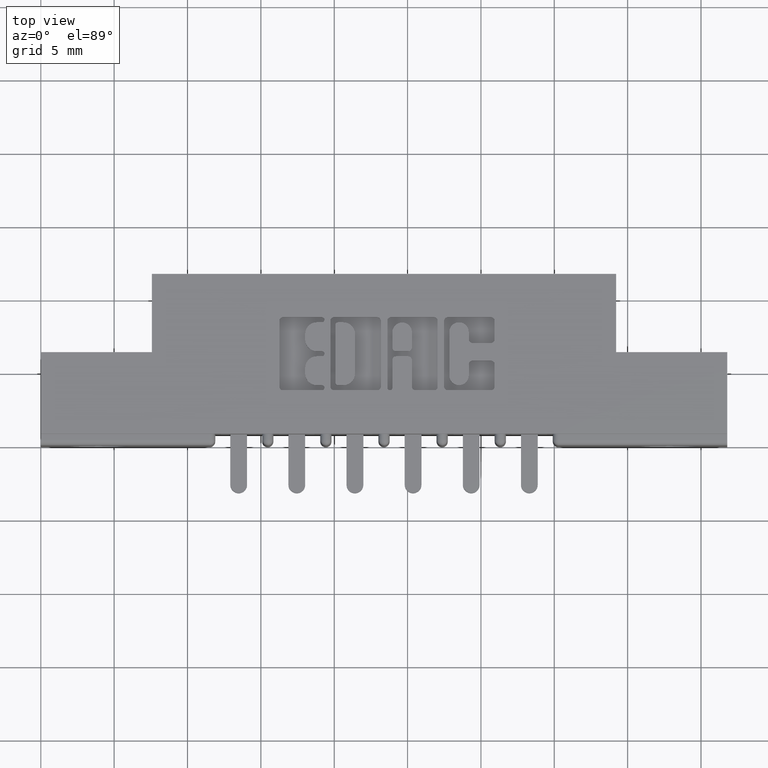
[diagram: clean part render]
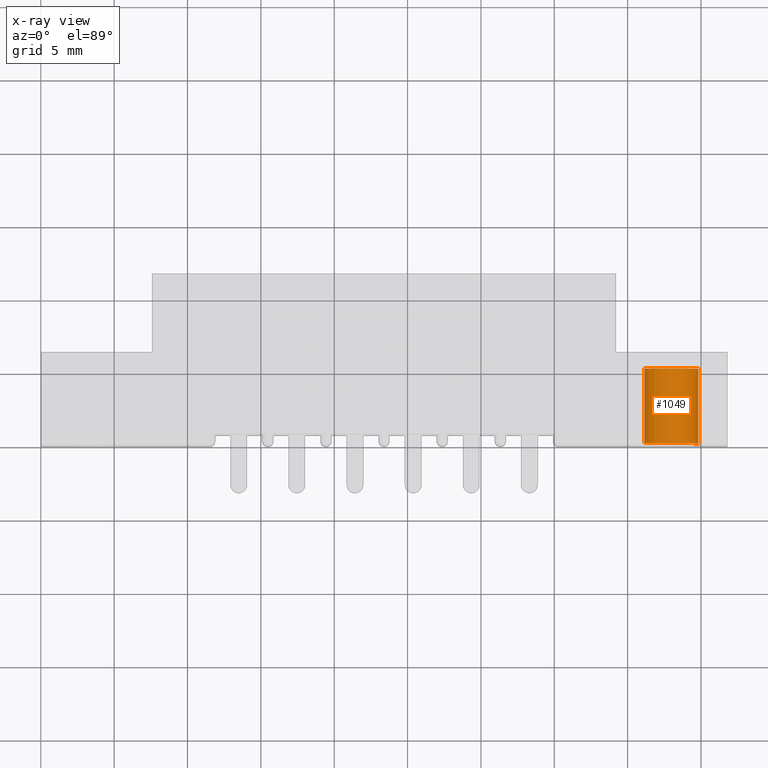
[diagram: x-ray — body ghosted, one internal face saturated and labeled with its STEP entity id]
A machine part, top view, then the same camera in x-ray: the body is ghosted and one INTERNAL B-rep face — a face not visible from any outside direction — is saturated and labeled: STEP entity #1049.
In plain terms, the highlighted cylindrical surface (edge-blend (fillet) strip) has radius 1.9685 mm, axis along (-0, 1, -0).
Its self-contained STEP definition (entity closure, byte-faithful):
#96 = ORIENTED_EDGE ( 'NONE', *, *, #10411, .F. ) ;
#262 = AXIS2_PLACEMENT_3D ( 'NONE', #2928, #3858, #6450 ) ;
#527 = VERTEX_POINT ( 'NONE', #9042 ) ;
#762 = DIRECTION ( 'NONE',  ( 0.0000000000000000000, 1.000000000000000000, 0.0000000000000000000 ) ) ;
#1049 = ADVANCED_FACE ( 'NONE', ( #8833 ), #6243, .T. ) ;
#1697 = ORIENTED_EDGE ( 'NONE', *, *, #11560, .F. ) ;
#1837 = CARTESIAN_POINT ( 'NONE',  ( 0.0000000000000000000, 0.2400000000000000500, 0.0000000000000000000 ) ) ;
#1997 = CARTESIAN_POINT ( 'NONE',  ( 0.0000000000000000000, 0.2400000000000000500, -0.07749999999999999900 ) ) ;
#2786 = AXIS2_PLACEMENT_3D ( 'NONE', #4478, #6329, #10104 ) ;
#2928 = CARTESIAN_POINT ( 'NONE',  ( 0.0000000000000000000, 0.2400000000000000500, 0.0000000000000000000 ) ) ;
#3029 = VERTEX_POINT ( 'NONE', #6564 ) ;
#3858 = DIRECTION ( 'NONE',  ( -0.0000000000000000000, -1.000000000000000000, -0.0000000000000000000 ) ) ;
#3961 = LINE ( 'NONE', #4228, #5689 ) ;
#4228 = CARTESIAN_POINT ( 'NONE',  ( 9.491012693391986400E-018, 0.2400000000000000500, 0.07749999999999999900 ) ) ;
#4478 = CARTESIAN_POINT ( 'NONE',  ( 0.0000000000000000000, 0.04000000000000000100, 0.0000000000000000000 ) ) ;
#4795 = DIRECTION ( 'NONE',  ( -0.0000000000000000000, -1.000000000000000000, -0.0000000000000000000 ) ) ;
#4883 = VERTEX_POINT ( 'NONE', #10996 ) ;
#5689 = VECTOR ( 'NONE', #11618, 39.37007874015748100 ) ;
#5752 = AXIS2_PLACEMENT_3D ( 'NONE', #1837, #762, #10055 ) ;
#6065 = ORIENTED_EDGE ( 'NONE', *, *, #7972, .T. ) ;
#6243 = CYLINDRICAL_SURFACE ( 'NONE', #262, 0.07749999999999999900 ) ;
#6329 = DIRECTION ( 'NONE',  ( 0.0000000000000000000, 1.000000000000000000, 0.0000000000000000000 ) ) ;
#6450 = DIRECTION ( 'NONE',  ( 0.0000000000000000000, 0.0000000000000000000, -1.000000000000000000 ) ) ;
#6564 = CARTESIAN_POINT ( 'NONE',  ( 9.491012693391986400E-018, 0.2400000000000000500, 0.07749999999999999900 ) ) ;
#7130 = LINE ( 'NONE', #1997, #7977 ) ;
#7418 = VERTEX_POINT ( 'NONE', #11635 ) ;
#7655 = EDGE_LOOP ( 'NONE', ( #1697, #6065, #9472, #96 ) ) ;
#7972 = EDGE_CURVE ( 'NONE', #3029, #7418, #3961, .T. ) ;
#7977 = VECTOR ( 'NONE', #4795, 39.37007874015748100 ) ;
#8190 = EDGE_CURVE ( 'NONE', #7418, #527, #10011, .T. ) ;
#8833 = FACE_OUTER_BOUND ( 'NONE', #7655, .T. ) ;
#9042 = CARTESIAN_POINT ( 'NONE',  ( 0.0000000000000000000, 0.04000000000000000100, -0.07749999999999999900 ) ) ;
#9472 = ORIENTED_EDGE ( 'NONE', *, *, #8190, .T. ) ;
#10011 = CIRCLE ( 'NONE', #2786, 0.07749999999999999900 ) ;
#10055 = DIRECTION ( 'NONE',  ( 0.0000000000000000000, 0.0000000000000000000, 1.000000000000000000 ) ) ;
#10104 = DIRECTION ( 'NONE',  ( 0.0000000000000000000, 0.0000000000000000000, 1.000000000000000000 ) ) ;
#10411 = EDGE_CURVE ( 'NONE', #4883, #527, #7130, .T. ) ;
#10843 = CIRCLE ( 'NONE', #5752, 0.07749999999999999900 ) ;
#10996 = CARTESIAN_POINT ( 'NONE',  ( 0.0000000000000000000, 0.2400000000000000500, -0.07749999999999999900 ) ) ;
#11560 = EDGE_CURVE ( 'NONE', #3029, #4883, #10843, .T. ) ;
#11618 = DIRECTION ( 'NONE',  ( -0.0000000000000000000, -1.000000000000000000, -0.0000000000000000000 ) ) ;
#11635 = CARTESIAN_POINT ( 'NONE',  ( 9.491012693391986400E-018, 0.04000000000000000100, 0.07749999999999999900 ) ) ;